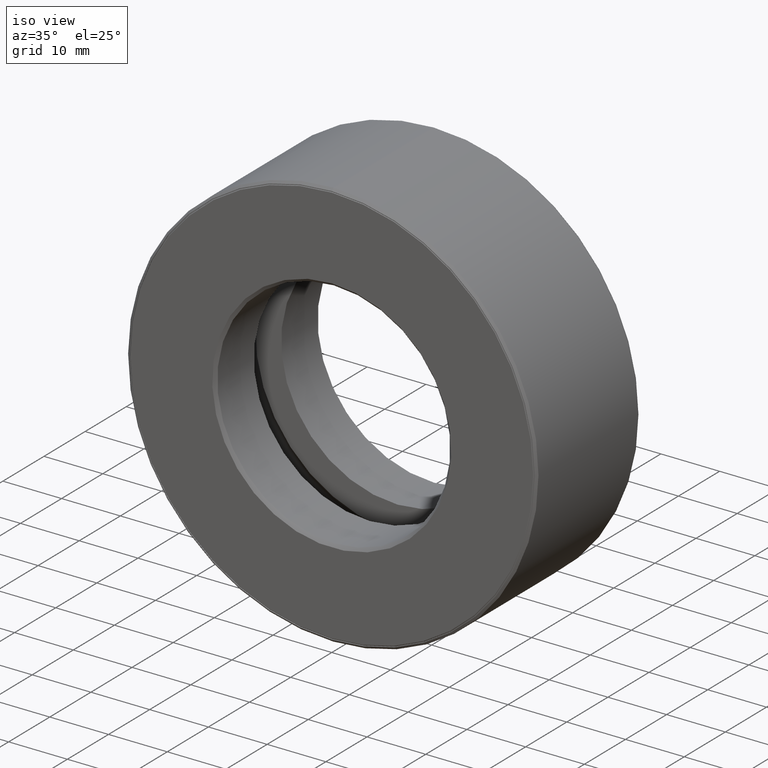
[diagram: clean part render]
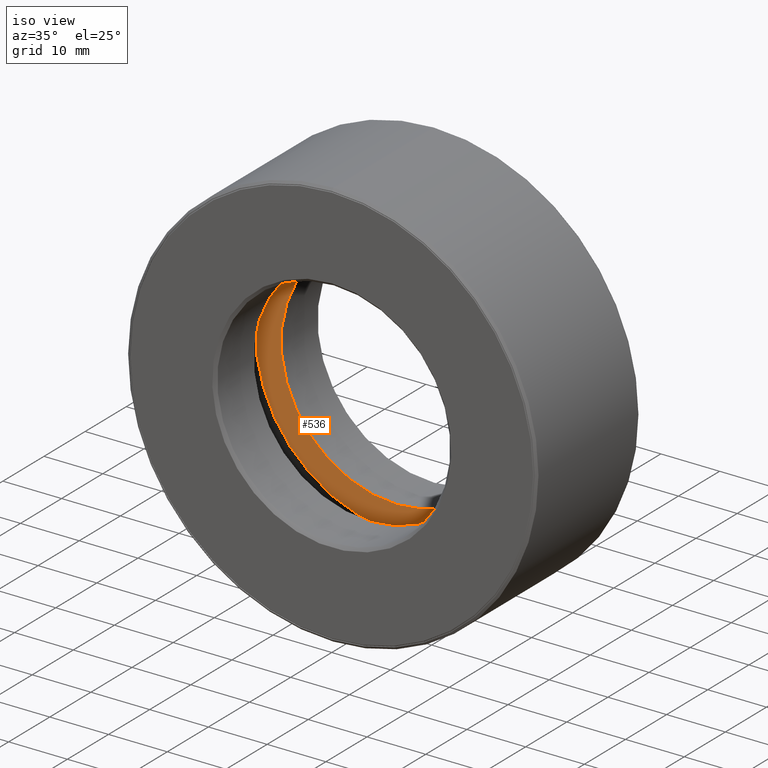
[diagram: same view with one face highlighted and labeled with its STEP entity id]
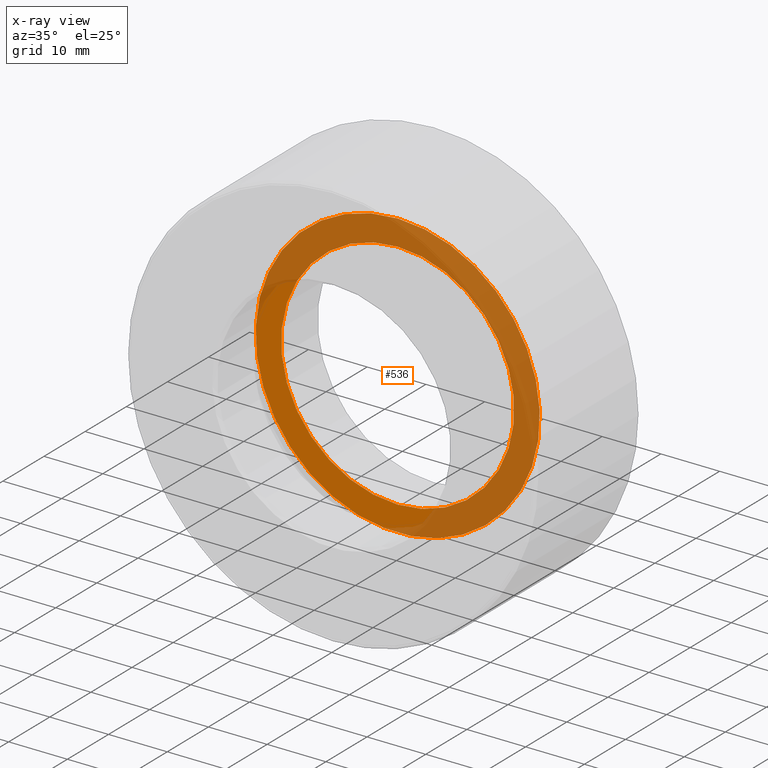
[diagram: x-ray of the same camera — body ghosted, the highlighted face saturated]
A machine part, iso view. The second image highlights one B-rep face of the part: STEP entity #536.
The next image is the same camera in x-ray: the body ghosted, the highlighted face saturated — about 67% of this face is hidden behind the body in this view.
In plain terms, the highlighted planar face has unit normal (0, -1, 0).
Its self-contained STEP definition (entity closure, byte-faithful):
#3 = DIRECTION ( 'NONE',  ( 0.0000000000000000000, -1.000000000000000000, 0.0000000000000000000 ) ) ;
#14 = CIRCLE ( 'NONE', #451, 0.9522500000000001500 ) ;
#65 = ORIENTED_EDGE ( 'NONE', *, *, #436, .T. ) ;
#115 = VERTEX_POINT ( 'NONE', #434 ) ;
#129 = CIRCLE ( 'NONE', #495, 0.7812500000000000000 ) ;
#145 = EDGE_LOOP ( 'NONE', ( #399 ) ) ;
#166 = CARTESIAN_POINT ( 'NONE',  ( 0.0000000000000000000, 0.6312499999999999800, 0.0000000000000000000 ) ) ;
#220 = FACE_OUTER_BOUND ( 'NONE', #145, .T. ) ;
#222 = PLANE ( 'NONE',  #339 ) ;
#229 = DIRECTION ( 'NONE',  ( 0.0000000000000000000, -0.0000000000000000000, -1.000000000000000000 ) ) ;
#264 = VERTEX_POINT ( 'NONE', #277 ) ;
#277 = CARTESIAN_POINT ( 'NONE',  ( 0.0000000000000000000, 0.6312499999999999800, 0.9522500000000001500 ) ) ;
#339 = AXIS2_PLACEMENT_3D ( 'NONE', #559, #3, #229 ) ;
#348 = EDGE_CURVE ( 'NONE', #264, #264, #14, .T. ) ;
#370 = DIRECTION ( 'NONE',  ( -0.0000000000000000000, 1.000000000000000000, -0.0000000000000000000 ) ) ;
#399 = ORIENTED_EDGE ( 'NONE', *, *, #348, .F. ) ;
#434 = CARTESIAN_POINT ( 'NONE',  ( 0.0000000000000000000, 0.6312499999999999800, 0.7812500000000000000 ) ) ;
#436 = EDGE_CURVE ( 'NONE', #115, #115, #129, .T. ) ;
#451 = AXIS2_PLACEMENT_3D ( 'NONE', #166, #370, #468 ) ;
#468 = DIRECTION ( 'NONE',  ( 0.0000000000000000000, 0.0000000000000000000, 1.000000000000000000 ) ) ;
#495 = AXIS2_PLACEMENT_3D ( 'NONE', #554, #597, #511 ) ;
#511 = DIRECTION ( 'NONE',  ( 0.0000000000000000000, 0.0000000000000000000, 1.000000000000000000 ) ) ;
#523 = EDGE_LOOP ( 'NONE', ( #65 ) ) ;
#536 = ADVANCED_FACE ( 'NONE', ( #598, #220 ), #222, .T. ) ;
#554 = CARTESIAN_POINT ( 'NONE',  ( 0.0000000000000000000, 0.6312499999999999800, 0.0000000000000000000 ) ) ;
#559 = CARTESIAN_POINT ( 'NONE',  ( 0.0000000000000000000, 0.6312499999999999800, 0.0000000000000000000 ) ) ;
#597 = DIRECTION ( 'NONE',  ( -0.0000000000000000000, 1.000000000000000000, -0.0000000000000000000 ) ) ;
#598 = FACE_BOUND ( 'NONE', #523, .T. ) ;